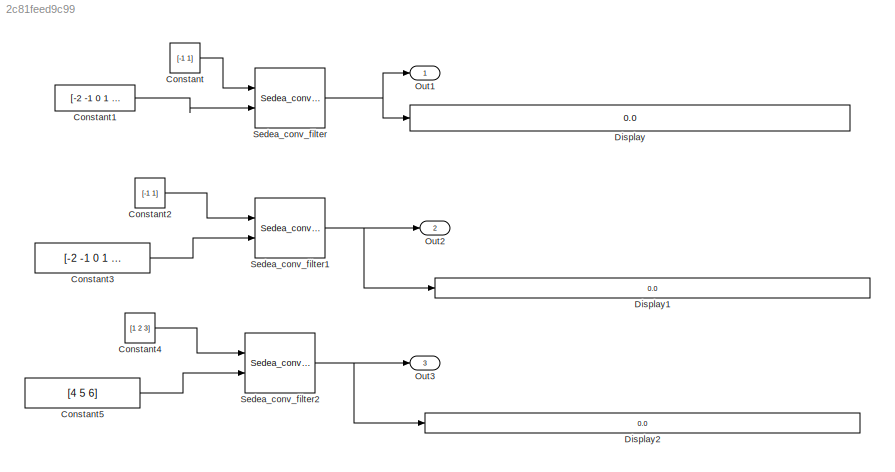
MODEL slx_2c81feed9c99
KIND model
CONFIG AbsTol = auto
CONFIG FixedStep = 1
CONFIG MaxStep = auto
CONFIG MinStep = auto
CONFIG RelTol = 1e-3
CONFIG SampleTimeConstraint = Unconstrained
CONFIG Solver = FixedStepDiscrete
CONFIG SolverMode = Auto
CONFIG SolverName = FixedStepDiscrete
CONFIG StartTime = 0.0
CONFIG StopTime = 10.0
BLOCK [Constant] Constant
  Value = [-1 1]
BLOCK [Constant] Constant1
  Value = [-2 -1 0 1 2]
BLOCK [Constant] Constant2
  Value = [-1 1]
BLOCK [Constant] Constant3
  Value = [-2 -1 0 1 2]
BLOCK [Constant] Constant4
  Value = [1 2 3]
BLOCK [Constant] Constant5
  Value = [4 5 6]
BLOCK [Display] Display
  Decimation = 1
  Ports = [1]
BLOCK [Display] Display1
  Decimation = 1
  Ports = [1]
BLOCK [Display] Display2
  Decimation = 1
  Ports = [1]
BLOCK [Outport] Out1
  IconDisplay = Port number
BLOCK [Outport] Out2
  IconDisplay = Port number
  Port = 2
BLOCK [Outport] Out3
  IconDisplay = Port number
  Port = 3
BLOCK [Reference] Sedea_conv_filter  REF=Sedea_Sul_filterlib/Sedea_conv_filter
  Ports = [2, 1]
  SourceBlock = Sedea_Sul_filterlib/Sedea_conv_filter
BLOCK [Reference] Sedea_conv_filter1  REF=Sedea_Sul_filterlib/Sedea_conv_filter
  Ports = [2, 1]
  SourceBlock = Sedea_Sul_filterlib/Sedea_conv_filter
BLOCK [Reference] Sedea_conv_filter2  REF=Sedea_Sul_filterlib/Sedea_conv_filter
  Ports = [2, 1]
  SourceBlock = Sedea_Sul_filterlib/Sedea_conv_filter
LINE Constant1:1 -> Sedea_conv_filter:2
LINE Constant2:1 -> Sedea_conv_filter1:1
LINE Constant3:1 -> Sedea_conv_filter1:2
LINE Constant4:1 -> Sedea_conv_filter2:1
LINE Constant5:1 -> Sedea_conv_filter2:2
LINE Constant:1 -> Sedea_conv_filter:1
NET Sedea_conv_filter1:1 -> Display1:1, Out2:1
NET Sedea_conv_filter2:1 -> Display2:1, Out3:1
NET Sedea_conv_filter:1 -> Display:1, Out1:1
note: NET lines group one-source signal fan-out (src -> all destinations, sorted); 1:1 wires keep LINE
